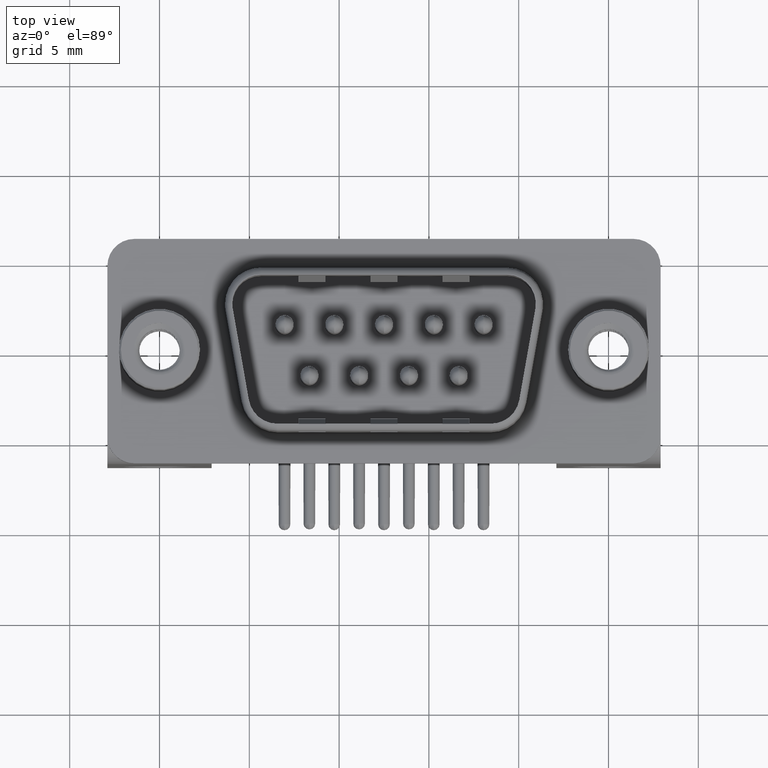
[diagram: clean part render]
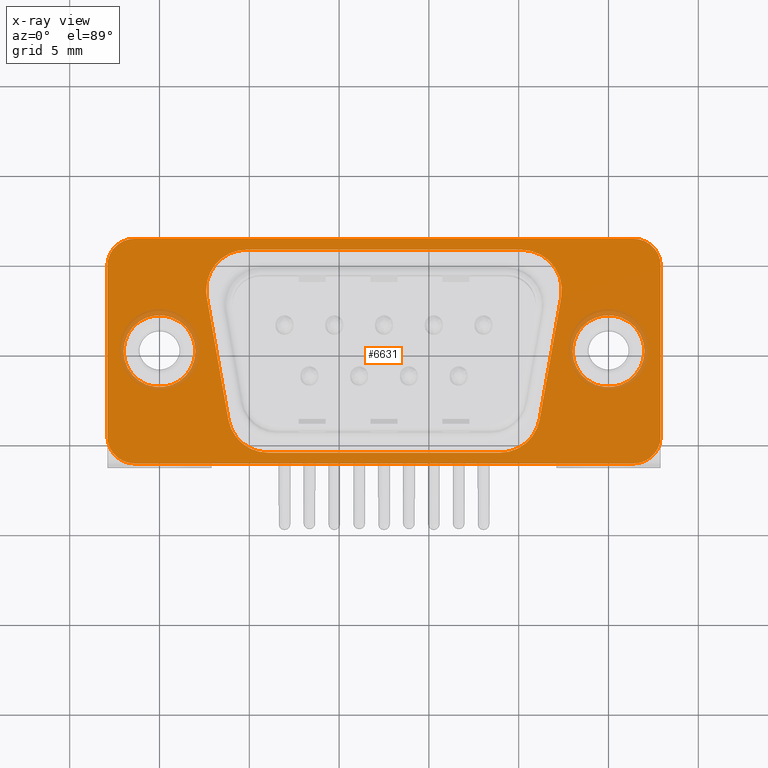
[diagram: x-ray — body ghosted, one internal face saturated and labeled with its STEP entity id]
A machine part, top view, then the same camera in x-ray: the body is ghosted and one INTERNAL B-rep face — a face not visible from any outside direction — is saturated and labeled: STEP entity #6631.
In plain terms, the highlighted planar face has unit normal (0, 0, -1).
Its self-contained STEP definition (entity closure, byte-faithful):
#32 = ORIENTED_EDGE ( 'NONE', *, *, #650, .F. ) ;
#259 = CARTESIAN_POINT ( 'NONE',  ( 25.00000000000000000, 0.0000000000000000000, 0.0000000000000000000 ) ) ;
#354 = ORIENTED_EDGE ( 'NONE', *, *, #16461, .F. ) ;
#399 = DIRECTION ( 'NONE',  ( -1.000000000000000000, 0.0000000000000000000, 0.0000000000000000000 ) ) ;
#464 = AXIS2_PLACEMENT_3D ( 'NONE', #259, #12310, #1990 ) ;
#561 = DIRECTION ( 'NONE',  ( -1.000000000000000000, 0.0000000000000000000, 0.0000000000000000000 ) ) ;
#650 = EDGE_CURVE ( 'NONE', #2211, #5734, #21195, .T. ) ;
#706 = DIRECTION ( 'NONE',  ( 1.000000000000000000, 0.0000000000000000000, 0.0000000000000000000 ) ) ;
#728 = DIRECTION ( 'NONE',  ( -1.000000000000000000, 0.0000000000000000000, 0.0000000000000000000 ) ) ;
#729 = DIRECTION ( 'NONE',  ( 0.0000000000000000000, 0.0000000000000000000, 1.000000000000000000 ) ) ;
#764 = CARTESIAN_POINT ( 'NONE',  ( 26.40000000000001300, 4.749999999999999100, 0.0000000000000000000 ) ) ;
#890 = DIRECTION ( 'NONE',  ( 0.0000000000000000000, 0.0000000000000000000, 1.000000000000000000 ) ) ;
#1048 = DIRECTION ( 'NONE',  ( -0.0000000000000000000, -1.000000000000000000, -0.0000000000000000000 ) ) ;
#1072 = VERTEX_POINT ( 'NONE', #8804 ) ;
#1193 = EDGE_CURVE ( 'NONE', #1072, #20380, #17061, .T. ) ;
#1204 = VERTEX_POINT ( 'NONE', #11999 ) ;
#1232 = PLANE ( 'NONE',  #19636 ) ;
#1661 = ORIENTED_EDGE ( 'NONE', *, *, #20667, .F. ) ;
#1664 = VERTEX_POINT ( 'NONE', #21784 ) ;
#1738 = DIRECTION ( 'NONE',  ( -1.000000000000000000, -6.240012503513691500E-017, 0.0000000000000000000 ) ) ;
#1854 = VECTOR ( 'NONE', #1738, 1000.000000000000000 ) ;
#1948 = VERTEX_POINT ( 'NONE', #16647 ) ;
#1990 = DIRECTION ( 'NONE',  ( 1.000000000000000000, 0.0000000000000000000, 0.0000000000000000000 ) ) ;
#2000 = VERTEX_POINT ( 'NONE', #20120 ) ;
#2001 = AXIS2_PLACEMENT_3D ( 'NONE', #9869, #22013, #11593 ) ;
#2003 = ORIENTED_EDGE ( 'NONE', *, *, #13980, .F. ) ;
#2059 = DIRECTION ( 'NONE',  ( 0.0000000000000000000, 0.0000000000000000000, 1.000000000000000000 ) ) ;
#2089 = ORIENTED_EDGE ( 'NONE', *, *, #10487, .T. ) ;
#2174 = DIRECTION ( 'NONE',  ( 0.0000000000000000000, 0.0000000000000000000, 1.000000000000000000 ) ) ;
#2201 = VECTOR ( 'NONE', #22118, 999.9999999999998900 ) ;
#2211 = VERTEX_POINT ( 'NONE', #21557 ) ;
#2405 = LINE ( 'NONE', #10385, #1854 ) ;
#2431 = DIRECTION ( 'NONE',  ( 0.0000000000000000000, 1.000000000000000000, 0.0000000000000000000 ) ) ;
#2721 = EDGE_CURVE ( 'NONE', #15451, #20923, #9976, .T. ) ;
#2724 = CARTESIAN_POINT ( 'NONE',  ( -2.899999999999997200, 4.749999999999997300, 0.0000000000000000000 ) ) ;
#2839 = VERTEX_POINT ( 'NONE', #3824 ) ;
#3351 = CIRCLE ( 'NONE', #13002, 2.250000000000002700 ) ;
#3414 = EDGE_CURVE ( 'NONE', #1664, #16046, #6167, .T. ) ;
#3545 = CARTESIAN_POINT ( 'NONE',  ( 0.0000000000000000000, 0.0000000000000000000, 0.0000000000000000000 ) ) ;
#3743 = VECTOR ( 'NONE', #1048, 1000.000000000000000 ) ;
#3824 = CARTESIAN_POINT ( 'NONE',  ( 6.049023468817512800, -5.650000000000007500, 0.0000000000000000000 ) ) ;
#4028 = CARTESIAN_POINT ( 'NONE',  ( 26.40000000000000600, -6.250000000000001800, 0.0000000000000000000 ) ) ;
#4105 = EDGE_LOOP ( 'NONE', ( #14465, #15743, #21796, #2089, #10345, #19714, #5220, #7914 ) ) ;
#4352 = LINE ( 'NONE', #15978, #17581 ) ;
#4596 = CIRCLE ( 'NONE', #464, 1.999999999999994900 ) ;
#4990 = AXIS2_PLACEMENT_3D ( 'NONE', #21087, #10699, #399 ) ;
#5100 = CARTESIAN_POINT ( 'NONE',  ( 4.850000000000006800, 3.399999999999995900, 0.0000000000000000000 ) ) ;
#5220 = ORIENTED_EDGE ( 'NONE', *, *, #3414, .T. ) ;
#5294 = DIRECTION ( 'NONE',  ( 1.000000000000000000, 0.0000000000000000000, 0.0000000000000000000 ) ) ;
#5307 = VERTEX_POINT ( 'NONE', #10839 ) ;
#5314 = EDGE_CURVE ( 'NONE', #2839, #2000, #4352, .T. ) ;
#5355 = LINE ( 'NONE', #4028, #19116 ) ;
#5416 = CARTESIAN_POINT ( 'NONE',  ( -1.399999999999998600, 4.749999999999997300, 0.0000000000000000000 ) ) ;
#5656 = FACE_BOUND ( 'NONE', #6188, .T. ) ;
#5734 = VERTEX_POINT ( 'NONE', #18822 ) ;
#5832 = VERTEX_POINT ( 'NONE', #17312 ) ;
#6167 = CIRCLE ( 'NONE', #16102, 1.499999999999998700 ) ;
#6188 = EDGE_LOOP ( 'NONE', ( #2003, #354 ) ) ;
#6332 = CARTESIAN_POINT ( 'NONE',  ( 21.16679397545995300, -3.790708399750582400, 0.0000000000000000000 ) ) ;
#6598 = VERTEX_POINT ( 'NONE', #13143 ) ;
#6611 = CIRCLE ( 'NONE', #15964, 2.000000000000000000 ) ;
#6631 = ADVANCED_FACE ( 'NONE', ( #10233, #14291, #5656, #18871 ), #1232, .F. ) ;
#6755 = LINE ( 'NONE', #9973, #2201 ) ;
#6835 = DIRECTION ( 'NONE',  ( -1.000000000000000000, 0.0000000000000000000, 0.0000000000000000000 ) ) ;
#6992 = CIRCLE ( 'NONE', #2001, 1.500000000000001300 ) ;
#7213 = CIRCLE ( 'NONE', #15028, 1.499999999999998700 ) ;
#7251 = EDGE_CURVE ( 'NONE', #17622, #5832, #17767, .T. ) ;
#7254 = CARTESIAN_POINT ( 'NONE',  ( 26.40000000000001300, 6.249999999999996400, 0.0000000000000000000 ) ) ;
#7322 = EDGE_CURVE ( 'NONE', #20923, #1664, #2405, .T. ) ;
#7877 = VECTOR ( 'NONE', #9275, 999.9999999999998900 ) ;
#7914 = ORIENTED_EDGE ( 'NONE', *, *, #13080, .T. ) ;
#8136 = DIRECTION ( 'NONE',  ( 1.000000000000000000, 0.0000000000000000000, 0.0000000000000000000 ) ) ;
#8141 = DIRECTION ( 'NONE',  ( 0.0000000000000000000, 0.0000000000000000000, 1.000000000000000000 ) ) ;
#8326 = LINE ( 'NONE', #13113, #3743 ) ;
#8506 = CARTESIAN_POINT ( 'NONE',  ( 20.15000000000000200, 3.399999999999995900, 0.0000000000000000000 ) ) ;
#8596 = EDGE_CURVE ( 'NONE', #5307, #6598, #7213, .T. ) ;
#8672 = EDGE_LOOP ( 'NONE', ( #13866, #17966 ) ) ;
#8728 = DIRECTION ( 'NONE',  ( -1.000000000000000000, 0.0000000000000000000, 0.0000000000000000000 ) ) ;
#8804 = CARTESIAN_POINT ( 'NONE',  ( 2.634182555722524500, 3.009291600249416100, 0.0000000000000000000 ) ) ;
#8827 = CIRCLE ( 'NONE', #11745, 1.999999999999994900 ) ;
#9075 = AXIS2_PLACEMENT_3D ( 'NONE', #5100, #17174, #6835 ) ;
#9275 = DIRECTION ( 'NONE',  ( 0.1736481776669255000, -0.9848077530122090200, -0.0000000000000000000 ) ) ;
#9418 = CARTESIAN_POINT ( 'NONE',  ( 26.99999999999999600, 0.0000000000000000000, 0.0000000000000000000 ) ) ;
#9869 = CARTESIAN_POINT ( 'NONE',  ( 26.40000000000000600, -4.750000000000001800, 0.0000000000000000000 ) ) ;
#9973 = CARTESIAN_POINT ( 'NONE',  ( 21.16679397545994200, -3.790708399750580600, 0.0000000000000000000 ) ) ;
#9976 = CIRCLE ( 'NONE', #20914, 1.499999999999997800 ) ;
#10040 = ORIENTED_EDGE ( 'NONE', *, *, #5314, .F. ) ;
#10233 = FACE_BOUND ( 'NONE', #13822, .T. ) ;
#10345 = ORIENTED_EDGE ( 'NONE', *, *, #2721, .T. ) ;
#10385 = CARTESIAN_POINT ( 'NONE',  ( 26.40000000000001300, 6.249999999999998200, 0.0000000000000000000 ) ) ;
#10487 = EDGE_CURVE ( 'NONE', #19095, #15451, #22369, .T. ) ;
#10574 = AXIS2_PLACEMENT_3D ( 'NONE', #3545, #15622, #5294 ) ;
#10688 = DIRECTION ( 'NONE',  ( 0.0000000000000000000, 0.0000000000000000000, 1.000000000000000000 ) ) ;
#10699 = DIRECTION ( 'NONE',  ( 0.0000000000000000000, 0.0000000000000000000, 1.000000000000000000 ) ) ;
#10839 = CARTESIAN_POINT ( 'NONE',  ( -2.899999999999996400, -4.750000000000006200, 0.0000000000000000000 ) ) ;
#10862 = DIRECTION ( 'NONE',  ( 0.0000000000000000000, 0.0000000000000000000, 1.000000000000000000 ) ) ;
#11025 = DIRECTION ( 'NONE',  ( 0.0000000000000000000, 0.0000000000000000000, 1.000000000000000000 ) ) ;
#11031 = EDGE_CURVE ( 'NONE', #5832, #1072, #3351, .T. ) ;
#11200 = CARTESIAN_POINT ( 'NONE',  ( 4.850000000000006800, 3.399999999999995900, 0.0000000000000000000 ) ) ;
#11593 = DIRECTION ( 'NONE',  ( 1.000000000000000000, 0.0000000000000000000, 0.0000000000000000000 ) ) ;
#11745 = AXIS2_PLACEMENT_3D ( 'NONE', #12380, #2059, #14127 ) ;
#11756 = CARTESIAN_POINT ( 'NONE',  ( 27.90000000000000900, -4.750000000000001800, 0.0000000000000000000 ) ) ;
#11848 = CARTESIAN_POINT ( 'NONE',  ( 26.40000000000000600, -6.250000000000001800, 0.0000000000000000000 ) ) ;
#11930 = ORIENTED_EDGE ( 'NONE', *, *, #11031, .F. ) ;
#11999 = CARTESIAN_POINT ( 'NONE',  ( 23.00000000000000700, 2.449293598294702000E-016, 0.0000000000000000000 ) ) ;
#12184 = CIRCLE ( 'NONE', #4990, 2.249999999999992000 ) ;
#12233 = EDGE_CURVE ( 'NONE', #1204, #15111, #4596, .T. ) ;
#12310 = DIRECTION ( 'NONE',  ( 0.0000000000000000000, 0.0000000000000000000, 1.000000000000000000 ) ) ;
#12332 = CARTESIAN_POINT ( 'NONE',  ( -2.000000000000000000, 2.449293598294706400E-016, 0.0000000000000000000 ) ) ;
#12380 = CARTESIAN_POINT ( 'NONE',  ( 25.00000000000000000, 0.0000000000000000000, 0.0000000000000000000 ) ) ;
#12501 = CARTESIAN_POINT ( 'NONE',  ( 0.0000000000000000000, 0.0000000000000000000, 0.0000000000000000000 ) ) ;
#12627 = DIRECTION ( 'NONE',  ( 1.000000000000000000, 9.360018755270541000E-017, -0.0000000000000000000 ) ) ;
#12716 = CARTESIAN_POINT ( 'NONE',  ( 4.850000000000006800, 5.649999999999995900, 0.0000000000000000000 ) ) ;
#12928 = DIRECTION ( 'NONE',  ( -1.000000000000000000, 0.0000000000000000000, 0.0000000000000000000 ) ) ;
#13002 = AXIS2_PLACEMENT_3D ( 'NONE', #11200, #890, #12928 ) ;
#13080 = EDGE_CURVE ( 'NONE', #16046, #5307, #8326, .T. ) ;
#13113 = CARTESIAN_POINT ( 'NONE',  ( -2.899999999999996400, -4.750000000000006200, 0.0000000000000000000 ) ) ;
#13143 = CARTESIAN_POINT ( 'NONE',  ( -1.399999999999998400, -6.250000000000004400, 0.0000000000000000000 ) ) ;
#13297 = DIRECTION ( 'NONE',  ( -1.000000000000000000, 0.0000000000000000000, 0.0000000000000000000 ) ) ;
#13460 = VERTEX_POINT ( 'NONE', #12332 ) ;
#13549 = EDGE_CURVE ( 'NONE', #6598, #16778, #5355, .T. ) ;
#13595 = AXIS2_PLACEMENT_3D ( 'NONE', #8506, #8141, #8728 ) ;
#13643 = EDGE_CURVE ( 'NONE', #5734, #17622, #18040, .T. ) ;
#13822 = EDGE_LOOP ( 'NONE', ( #1661, #16216, #10040, #22240, #20308, #11930, #17629, #19897, #32 ) ) ;
#13866 = ORIENTED_EDGE ( 'NONE', *, *, #14064, .F. ) ;
#13980 = EDGE_CURVE ( 'NONE', #1948, #13460, #15058, .T. ) ;
#14064 = EDGE_CURVE ( 'NONE', #15111, #1204, #8827, .T. ) ;
#14075 = CARTESIAN_POINT ( 'NONE',  ( 2.634182555722528500, 3.009291600249416100, 0.0000000000000000000 ) ) ;
#14115 = EDGE_CURVE ( 'NONE', #2000, #21199, #17480, .T. ) ;
#14127 = DIRECTION ( 'NONE',  ( 1.000000000000000000, 0.0000000000000000000, 0.0000000000000000000 ) ) ;
#14232 = DIRECTION ( 'NONE',  ( 1.000000000000000000, 0.0000000000000000000, 0.0000000000000000000 ) ) ;
#14291 = FACE_BOUND ( 'NONE', #8672, .T. ) ;
#14300 = CARTESIAN_POINT ( 'NONE',  ( 3.833206024540049200, -3.790708399750583700, 0.0000000000000000000 ) ) ;
#14422 = CARTESIAN_POINT ( 'NONE',  ( 27.90000000000000900, -4.750000000000001800, 0.0000000000000000000 ) ) ;
#14465 = ORIENTED_EDGE ( 'NONE', *, *, #8596, .T. ) ;
#14524 = CARTESIAN_POINT ( 'NONE',  ( -1.399999999999998600, 5.649999999999995900, 0.0000000000000000000 ) ) ;
#14956 = DIRECTION ( 'NONE',  ( -0.0000000000000000000, 0.0000000000000000000, -1.000000000000000000 ) ) ;
#15028 = AXIS2_PLACEMENT_3D ( 'NONE', #21438, #11025, #728 ) ;
#15058 = CIRCLE ( 'NONE', #10574, 2.000000000000000000 ) ;
#15111 = VERTEX_POINT ( 'NONE', #9418 ) ;
#15451 = VERTEX_POINT ( 'NONE', #19888 ) ;
#15622 = DIRECTION ( 'NONE',  ( 0.0000000000000000000, 0.0000000000000000000, 1.000000000000000000 ) ) ;
#15743 = ORIENTED_EDGE ( 'NONE', *, *, #13549, .T. ) ;
#15964 = AXIS2_PLACEMENT_3D ( 'NONE', #12501, #2174, #14232 ) ;
#15978 = CARTESIAN_POINT ( 'NONE',  ( -1.399999999999998600, -5.650000000000007500, 0.0000000000000000000 ) ) ;
#16046 = VERTEX_POINT ( 'NONE', #2724 ) ;
#16102 = AXIS2_PLACEMENT_3D ( 'NONE', #5416, #10688, #8136 ) ;
#16216 = ORIENTED_EDGE ( 'NONE', *, *, #14115, .F. ) ;
#16461 = EDGE_CURVE ( 'NONE', #13460, #1948, #6611, .T. ) ;
#16647 = CARTESIAN_POINT ( 'NONE',  ( 2.000000000000000000, 0.0000000000000000000, 0.0000000000000000000 ) ) ;
#16778 = VERTEX_POINT ( 'NONE', #11848 ) ;
#17061 = LINE ( 'NONE', #14075, #7877 ) ;
#17174 = DIRECTION ( 'NONE',  ( 0.0000000000000000000, 0.0000000000000000000, 1.000000000000000000 ) ) ;
#17312 = CARTESIAN_POINT ( 'NONE',  ( 2.600000000000004100, 3.399999999999995900, 0.0000000000000000000 ) ) ;
#17480 = CIRCLE ( 'NONE', #19868, 2.249999999999995100 ) ;
#17503 = VECTOR ( 'NONE', #19737, 1000.000000000000000 ) ;
#17581 = VECTOR ( 'NONE', #19546, 1000.000000000000000 ) ;
#17622 = VERTEX_POINT ( 'NONE', #12716 ) ;
#17629 = ORIENTED_EDGE ( 'NONE', *, *, #7251, .F. ) ;
#17767 = CIRCLE ( 'NONE', #9075, 2.250000000000002700 ) ;
#17966 = ORIENTED_EDGE ( 'NONE', *, *, #12233, .F. ) ;
#18040 = LINE ( 'NONE', #14524, #17503 ) ;
#18822 = CARTESIAN_POINT ( 'NONE',  ( 20.15000000000000200, 5.649999999999995900, 0.0000000000000000000 ) ) ;
#18871 = FACE_OUTER_BOUND ( 'NONE', #4105, .T. ) ;
#19095 = VERTEX_POINT ( 'NONE', #11756 ) ;
#19116 = VECTOR ( 'NONE', #12627, 1000.000000000000000 ) ;
#19546 = DIRECTION ( 'NONE',  ( 1.000000000000000000, -0.0000000000000000000, -0.0000000000000000000 ) ) ;
#19588 = EDGE_CURVE ( 'NONE', #20380, #2839, #12184, .T. ) ;
#19636 = AXIS2_PLACEMENT_3D ( 'NONE', #21954, #14956, #13297 ) ;
#19714 = ORIENTED_EDGE ( 'NONE', *, *, #7322, .T. ) ;
#19737 = DIRECTION ( 'NONE',  ( -1.000000000000000000, 0.0000000000000000000, 0.0000000000000000000 ) ) ;
#19868 = AXIS2_PLACEMENT_3D ( 'NONE', #21261, #10862, #561 ) ;
#19888 = CARTESIAN_POINT ( 'NONE',  ( 27.90000000000000900, 4.749999999999999100, 0.0000000000000000000 ) ) ;
#19897 = ORIENTED_EDGE ( 'NONE', *, *, #13643, .F. ) ;
#20120 = CARTESIAN_POINT ( 'NONE',  ( 18.95097653118249400, -5.649999999999998600, 0.0000000000000000000 ) ) ;
#20308 = ORIENTED_EDGE ( 'NONE', *, *, #1193, .F. ) ;
#20380 = VERTEX_POINT ( 'NONE', #14300 ) ;
#20667 = EDGE_CURVE ( 'NONE', #21199, #2211, #6755, .T. ) ;
#20914 = AXIS2_PLACEMENT_3D ( 'NONE', #764, #729, #706 ) ;
#20923 = VERTEX_POINT ( 'NONE', #7254 ) ;
#21087 = CARTESIAN_POINT ( 'NONE',  ( 6.049023468817512800, -3.400000000000005200, 0.0000000000000000000 ) ) ;
#21195 = CIRCLE ( 'NONE', #13595, 2.250000000000001800 ) ;
#21199 = VERTEX_POINT ( 'NONE', #6332 ) ;
#21261 = CARTESIAN_POINT ( 'NONE',  ( 18.95097653118249400, -3.400000000000005200, 0.0000000000000000000 ) ) ;
#21404 = EDGE_CURVE ( 'NONE', #16778, #19095, #6992, .T. ) ;
#21438 = CARTESIAN_POINT ( 'NONE',  ( -1.399999999999998600, -4.750000000000005300, 0.0000000000000000000 ) ) ;
#21557 = CARTESIAN_POINT ( 'NONE',  ( 22.36581744427747500, 3.009291600249417900, 0.0000000000000000000 ) ) ;
#21784 = CARTESIAN_POINT ( 'NONE',  ( -1.399999999999998600, 6.249999999999996400, 0.0000000000000000000 ) ) ;
#21796 = ORIENTED_EDGE ( 'NONE', *, *, #21404, .T. ) ;
#21821 = VECTOR ( 'NONE', #2431, 1000.000000000000000 ) ;
#21954 = CARTESIAN_POINT ( 'NONE',  ( -1.399999999999998600, -4.750000000000005300, 0.0000000000000000000 ) ) ;
#22013 = DIRECTION ( 'NONE',  ( 0.0000000000000000000, 0.0000000000000000000, 1.000000000000000000 ) ) ;
#22118 = DIRECTION ( 'NONE',  ( 0.1736481776669255000, 0.9848077530122090200, -0.0000000000000000000 ) ) ;
#22240 = ORIENTED_EDGE ( 'NONE', *, *, #19588, .F. ) ;
#22369 = LINE ( 'NONE', #14422, #21821 ) ;